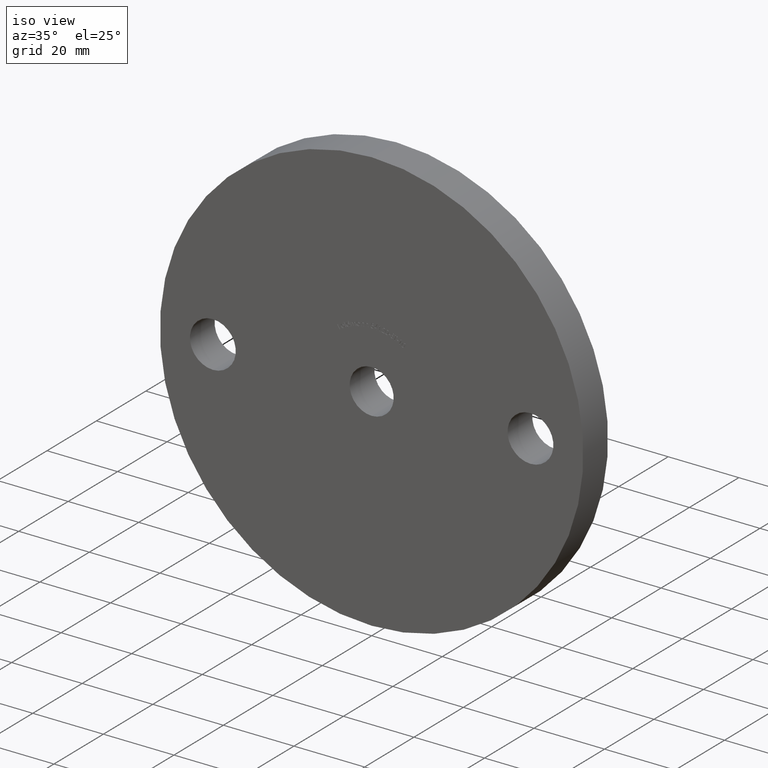
[diagram: clean part render]
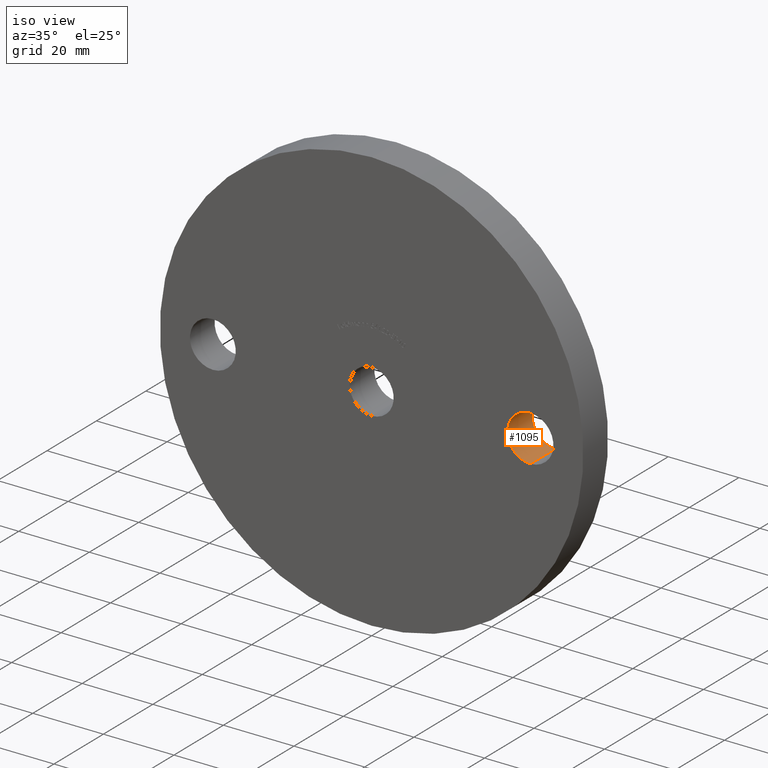
[diagram: same view with one face highlighted and labeled with its STEP entity id]
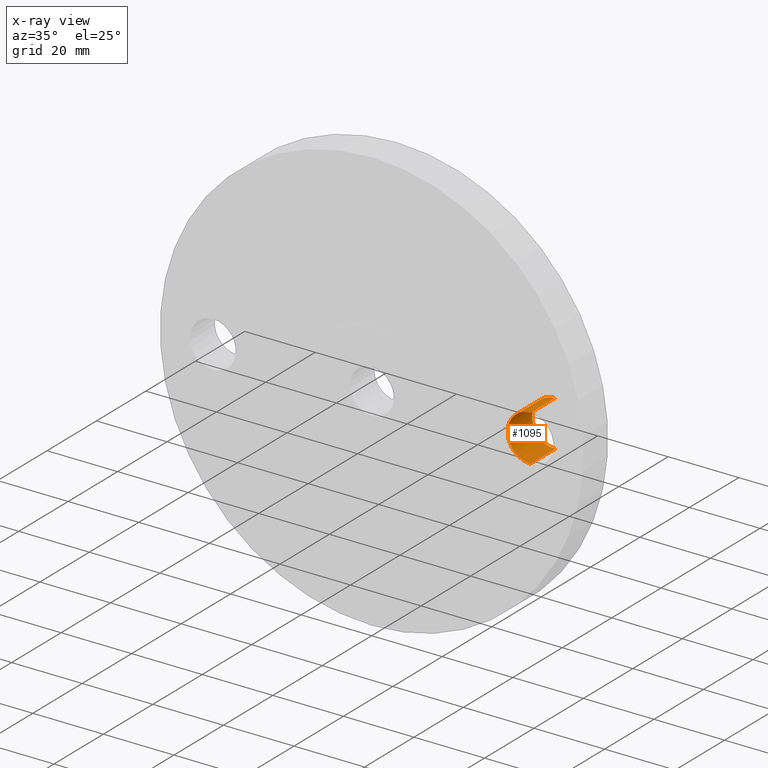
[diagram: x-ray of the same camera — body ghosted, the highlighted face saturated]
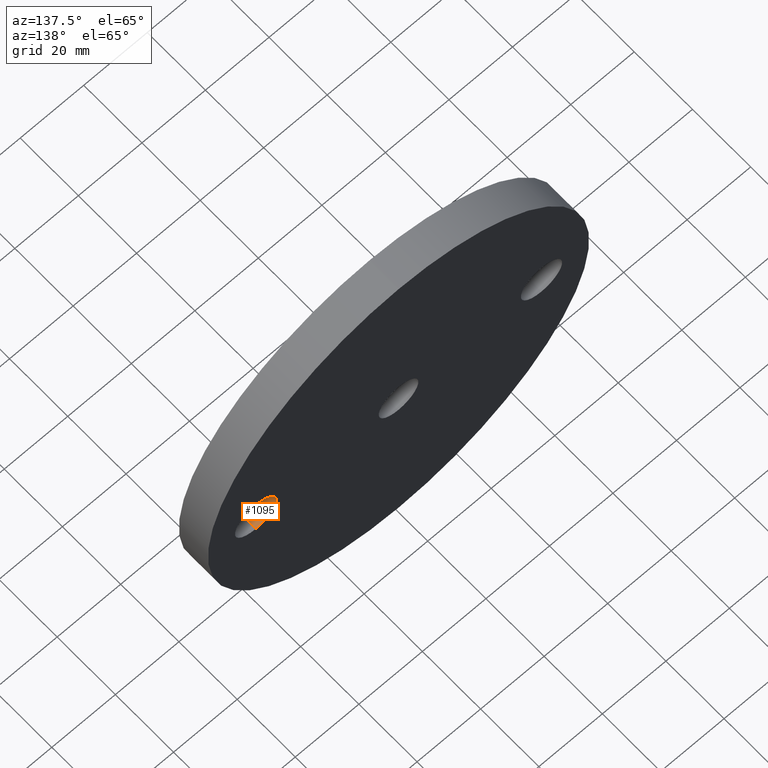
[diagram: same view with one face highlighted and labeled with its STEP entity id]
A machine part, iso view. The second image highlights one B-rep face of the part: STEP entity #1095.
The next image is the same camera in x-ray: the body ghosted, the highlighted face saturated — about 0% of this face is hidden behind the body in this view.
A second angle (auxiliary view) of the same face is appended — the face is thin or edge-on in the first view.
In plain terms, the highlighted cylindrical surface (edge-blend (fillet) strip) has radius 6.5 mm, axis along (-0, 1, -0).
Its self-contained STEP definition (entity closure, byte-faithful):
#425 = DIRECTION ( 'NONE',  ( 0.0000000000000000000, 1.000000000000000000, 0.0000000000000000000 ) ) ;
#807 = DIRECTION ( 'NONE',  ( -0.0000000000000000000, 1.000000000000000000, -0.0000000000000000000 ) ) ;
#823 = DIRECTION ( 'NONE',  ( -0.0000000000000000000, 1.000000000000000000, -0.0000000000000000000 ) ) ;
#862 = VERTEX_POINT ( 'NONE', #7380 ) ;
#976 = FACE_OUTER_BOUND ( 'NONE', #1730, .T. ) ;
#1095 = ADVANCED_FACE ( 'NONE', ( #976 ), #5853, .F. ) ;
#1585 = EDGE_CURVE ( 'NONE', #8630, #8544, #5556, .T. ) ;
#1730 = EDGE_LOOP ( 'NONE', ( #8431, #6629, #5125, #11838 ) ) ;
#2034 = AXIS2_PLACEMENT_3D ( 'NONE', #5772, #823, #10511 ) ;
#2409 = DIRECTION ( 'NONE',  ( 0.0000000000000000000, 0.0000000000000000000, 1.000000000000000000 ) ) ;
#2630 = CARTESIAN_POINT ( 'NONE',  ( 45.00000000000000000, 0.0000000000000000000, -1.102182119232617900E-014 ) ) ;
#3991 = CARTESIAN_POINT ( 'NONE',  ( 45.00000000000000000, 0.0000000000000000000, 6.499999999999989300 ) ) ;
#5125 = ORIENTED_EDGE ( 'NONE', *, *, #8766, .T. ) ;
#5188 = VERTEX_POINT ( 'NONE', #5738 ) ;
#5470 = DIRECTION ( 'NONE',  ( 0.0000000000000000000, 0.0000000000000000000, 1.000000000000000000 ) ) ;
#5556 = CIRCLE ( 'NONE', #9632, 6.500000000000000900 ) ;
#5738 = CARTESIAN_POINT ( 'NONE',  ( 45.00000000000000000, 10.00000000000000000, 6.499999999999989300 ) ) ;
#5772 = CARTESIAN_POINT ( 'NONE',  ( 45.00000000000000000, 0.0000000000000000000, -1.102182119232617900E-014 ) ) ;
#5853 = CYLINDRICAL_SURFACE ( 'NONE', #2034, 6.500000000000000900 ) ;
#6141 = EDGE_CURVE ( 'NONE', #8630, #862, #7625, .T. ) ;
#6629 = ORIENTED_EDGE ( 'NONE', *, *, #6141, .T. ) ;
#7072 = LINE ( 'NONE', #3991, #11040 ) ;
#7085 = CARTESIAN_POINT ( 'NONE',  ( 45.00000000000000000, 10.00000000000000000, -1.102182119232617900E-014 ) ) ;
#7380 = CARTESIAN_POINT ( 'NONE',  ( 45.00000000000000000, 10.00000000000000000, -6.500000000000011500 ) ) ;
#7625 = LINE ( 'NONE', #8706, #9156 ) ;
#7905 = CARTESIAN_POINT ( 'NONE',  ( 45.00000000000000000, 0.0000000000000000000, -6.500000000000011500 ) ) ;
#8431 = ORIENTED_EDGE ( 'NONE', *, *, #1585, .F. ) ;
#8544 = VERTEX_POINT ( 'NONE', #10578 ) ;
#8630 = VERTEX_POINT ( 'NONE', #7905 ) ;
#8706 = CARTESIAN_POINT ( 'NONE',  ( 45.00000000000000000, 0.0000000000000000000, -6.500000000000011500 ) ) ;
#8766 = EDGE_CURVE ( 'NONE', #862, #5188, #10047, .T. ) ;
#9156 = VECTOR ( 'NONE', #807, 1000.000000000000000 ) ;
#9592 = AXIS2_PLACEMENT_3D ( 'NONE', #7085, #425, #2409 ) ;
#9632 = AXIS2_PLACEMENT_3D ( 'NONE', #2630, #12202, #5470 ) ;
#10047 = CIRCLE ( 'NONE', #9592, 6.500000000000000900 ) ;
#10511 = DIRECTION ( 'NONE',  ( 0.0000000000000000000, 0.0000000000000000000, 1.000000000000000000 ) ) ;
#10578 = CARTESIAN_POINT ( 'NONE',  ( 45.00000000000000000, 0.0000000000000000000, 6.499999999999989300 ) ) ;
#11040 = VECTOR ( 'NONE', #11881, 1000.000000000000000 ) ;
#11838 = ORIENTED_EDGE ( 'NONE', *, *, #12102, .F. ) ;
#11881 = DIRECTION ( 'NONE',  ( -0.0000000000000000000, 1.000000000000000000, -0.0000000000000000000 ) ) ;
#12102 = EDGE_CURVE ( 'NONE', #8544, #5188, #7072, .T. ) ;
#12202 = DIRECTION ( 'NONE',  ( 0.0000000000000000000, 1.000000000000000000, 0.0000000000000000000 ) ) ;